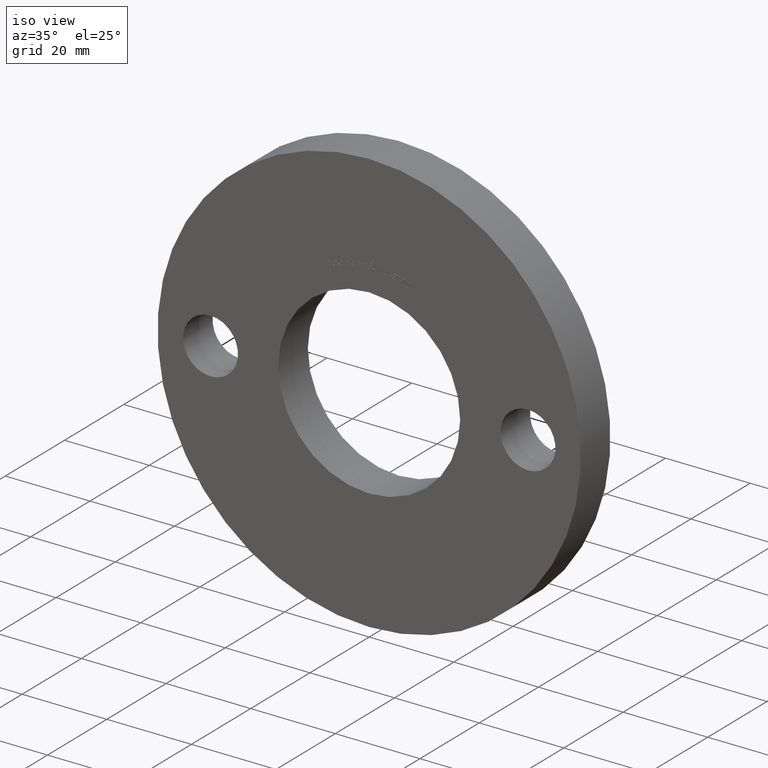
[diagram: clean part render]
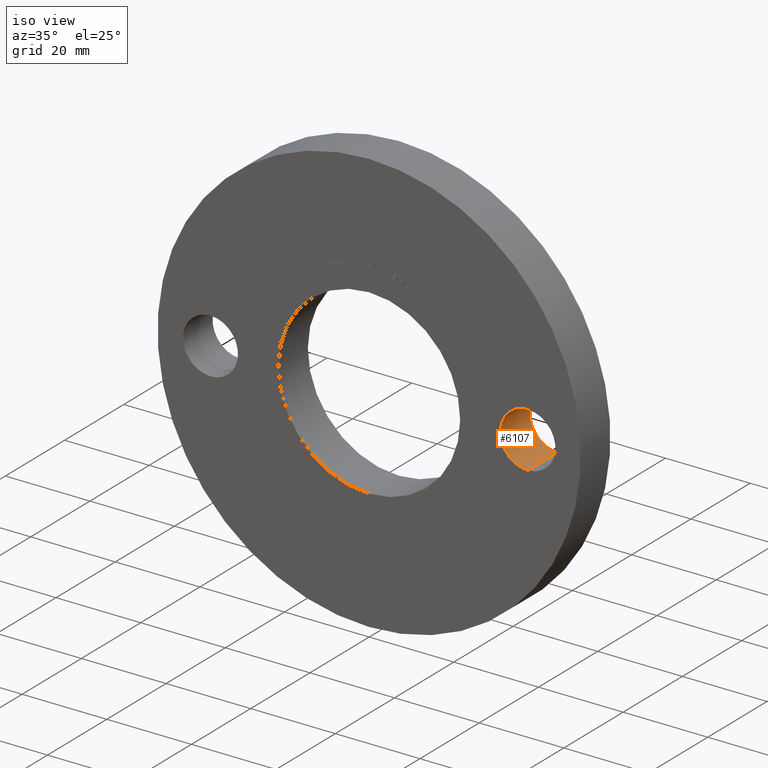
[diagram: same view with one face highlighted and labeled with its STEP entity id]
A machine part, iso view. The second image highlights one B-rep face of the part: STEP entity #6107.
In plain terms, the highlighted cylindrical surface (edge-blend (fillet) strip) has radius 6.5 mm, axis along (-0, 1, -0).
Its self-contained STEP definition (entity closure, byte-faithful):
#231 = EDGE_CURVE ( 'NONE', #1128, #10030, #6740, .T. ) ;
#328 = ORIENTED_EDGE ( 'NONE', *, *, #231, .T. ) ;
#529 = DIRECTION ( 'NONE',  ( 0.0000000000000000000, 0.0000000000000000000, 1.000000000000000000 ) ) ;
#696 = AXIS2_PLACEMENT_3D ( 'NONE', #790, #2526, #4298 ) ;
#790 = CARTESIAN_POINT ( 'NONE',  ( 37.50000000000000000, 0.0000000000000000000, -9.184850993605148700E-015 ) ) ;
#829 = CARTESIAN_POINT ( 'NONE',  ( 37.50000000000000000, 0.0000000000000000000, 6.499999999999991100 ) ) ;
#954 = FACE_OUTER_BOUND ( 'NONE', #2776, .T. ) ;
#1128 = VERTEX_POINT ( 'NONE', #7647 ) ;
#1772 = EDGE_CURVE ( 'NONE', #10030, #3423, #7789, .T. ) ;
#2142 = CARTESIAN_POINT ( 'NONE',  ( 37.50000000000000000, 10.00000000000000000, -9.184850993605148700E-015 ) ) ;
#2330 = CARTESIAN_POINT ( 'NONE',  ( 37.50000000000000000, 0.0000000000000000000, -9.184850993605148700E-015 ) ) ;
#2526 = DIRECTION ( 'NONE',  ( 0.0000000000000000000, 1.000000000000000000, 0.0000000000000000000 ) ) ;
#2613 = VECTOR ( 'NONE', #8686, 1000.000000000000000 ) ;
#2776 = EDGE_LOOP ( 'NONE', ( #4893, #328, #5728, #7621 ) ) ;
#3423 = VERTEX_POINT ( 'NONE', #5463 ) ;
#3534 = VERTEX_POINT ( 'NONE', #7747 ) ;
#3709 = CYLINDRICAL_SURFACE ( 'NONE', #4297, 6.500000000000000900 ) ;
#3928 = CARTESIAN_POINT ( 'NONE',  ( 37.50000000000000000, 0.0000000000000000000, -6.500000000000009800 ) ) ;
#4015 = LINE ( 'NONE', #829, #2613 ) ;
#4297 = AXIS2_PLACEMENT_3D ( 'NONE', #2330, #5915, #529 ) ;
#4298 = DIRECTION ( 'NONE',  ( 0.0000000000000000000, 0.0000000000000000000, 1.000000000000000000 ) ) ;
#4380 = VECTOR ( 'NONE', #4662, 1000.000000000000000 ) ;
#4662 = DIRECTION ( 'NONE',  ( -0.0000000000000000000, 1.000000000000000000, -0.0000000000000000000 ) ) ;
#4893 = ORIENTED_EDGE ( 'NONE', *, *, #11167, .F. ) ;
#4982 = CIRCLE ( 'NONE', #696, 6.500000000000000900 ) ;
#5463 = CARTESIAN_POINT ( 'NONE',  ( 37.50000000000000000, 10.00000000000000000, 6.499999999999991100 ) ) ;
#5728 = ORIENTED_EDGE ( 'NONE', *, *, #1772, .T. ) ;
#5915 = DIRECTION ( 'NONE',  ( -0.0000000000000000000, 1.000000000000000000, -0.0000000000000000000 ) ) ;
#6107 = ADVANCED_FACE ( 'NONE', ( #954 ), #3709, .F. ) ;
#6740 = LINE ( 'NONE', #3928, #4380 ) ;
#7047 = AXIS2_PLACEMENT_3D ( 'NONE', #2142, #7345, #7425 ) ;
#7345 = DIRECTION ( 'NONE',  ( 0.0000000000000000000, 1.000000000000000000, 0.0000000000000000000 ) ) ;
#7425 = DIRECTION ( 'NONE',  ( 0.0000000000000000000, 0.0000000000000000000, 1.000000000000000000 ) ) ;
#7621 = ORIENTED_EDGE ( 'NONE', *, *, #11182, .F. ) ;
#7647 = CARTESIAN_POINT ( 'NONE',  ( 37.50000000000000000, 0.0000000000000000000, -6.500000000000009800 ) ) ;
#7747 = CARTESIAN_POINT ( 'NONE',  ( 37.50000000000000000, 0.0000000000000000000, 6.499999999999991100 ) ) ;
#7789 = CIRCLE ( 'NONE', #7047, 6.500000000000000900 ) ;
#8686 = DIRECTION ( 'NONE',  ( -0.0000000000000000000, 1.000000000000000000, -0.0000000000000000000 ) ) ;
#10001 = CARTESIAN_POINT ( 'NONE',  ( 37.50000000000000000, 10.00000000000000000, -6.500000000000009800 ) ) ;
#10030 = VERTEX_POINT ( 'NONE', #10001 ) ;
#11167 = EDGE_CURVE ( 'NONE', #1128, #3534, #4982, .T. ) ;
#11182 = EDGE_CURVE ( 'NONE', #3534, #3423, #4015, .T. ) ;